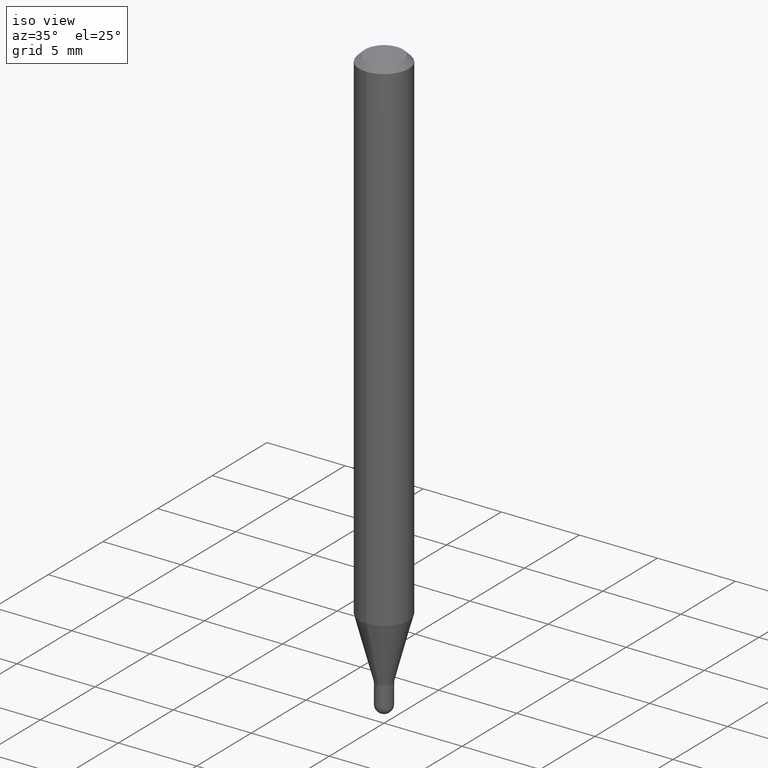
[diagram: clean part render]
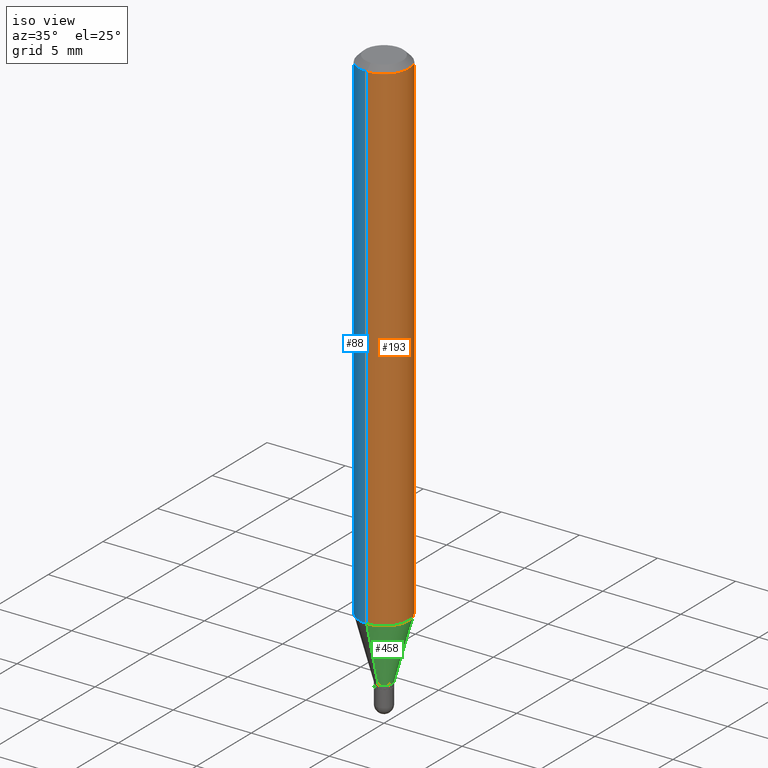
[diagram: same view with three faces highlighted in distinct colors, each labeled with its STEP entity id]
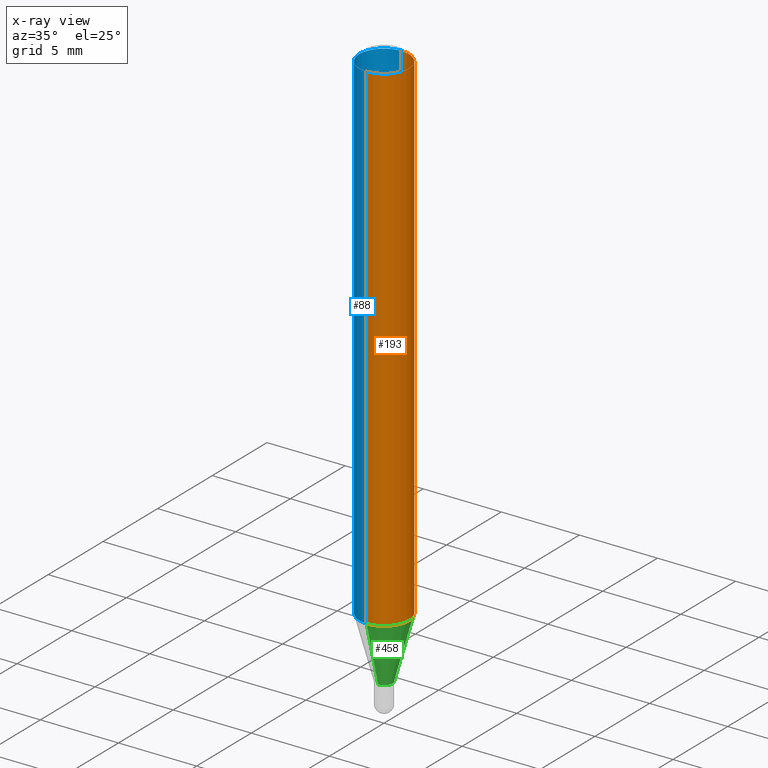
[diagram: x-ray of the same camera — body ghosted, the three highlighted faces saturated]
A machine part, iso view with three faces highlighted in distinct colors.
The next image is the same camera in x-ray (body ghosted, the three faces saturated) — at least one of them is partly hidden behind the body in this view.
Their STEP definitions:

[orange] entity #193 — the highlighted cylindrical surface (edge-blend (fillet) strip) has radius 1.5875 mm, axis along (-0, 0, 1).
#5 = AXIS2_PLACEMENT_3D ( 'NONE', #84, #413, #50 ) ;
#10 = DIRECTION ( 'NONE',  ( -2.445480848549432183E-29, 3.491464093492065747E-15, 1.000000000000000000 ) ) ;
#26 = ORIENTED_EDGE ( 'NONE', *, *, #492, .F. ) ;
#44 = CARTESIAN_POINT ( 'NONE',  ( 4.440892098500625669E-16, 0.06250000000000000000, -2.182165058432541092E-16 ) ) ;
#50 = DIRECTION ( 'NONE',  ( -6.982962677686265922E-15, -1.000000000000000000, 3.483106191921935554E-15 ) ) ;
#58 = VERTEX_POINT ( 'NONE', #123 ) ;
#66 = VERTEX_POINT ( 'NONE', #192 ) ;
#84 = CARTESIAN_POINT ( 'NONE',  ( 3.668221272824228849E-31, -5.237196140238213400E-17, -0.01500000000000032904 ) ) ;
#92 = CARTESIAN_POINT ( 'NONE',  ( 0.000000000000000000, 0.000000000000000000, 0.000000000000000000 ) ) ;
#108 = DIRECTION ( 'NONE',  ( -2.445480848549432183E-29, 3.491464093492066142E-15, 1.000000000000000000 ) ) ;
#114 = LINE ( 'NONE', #154, #281 ) ;
#123 = CARTESIAN_POINT ( 'NONE',  ( -4.364351673553605587E-16, -0.06250000000000445477, -1.272119891485891552 ) ) ;
#149 = AXIS2_PLACEMENT_3D ( 'NONE', #220, #375, #176 ) ;
#154 = CARTESIAN_POINT ( 'NONE',  ( -4.364351673553916201E-16, -0.06250000000000000000, 2.182165058432541092E-16 ) ) ;
#176 = DIRECTION ( 'NONE',  ( -6.982962677686265922E-15, -1.000000000000000000, 4.370956789862821150E-15 ) ) ;
#192 = CARTESIAN_POINT ( 'NONE',  ( 4.440892098500938748E-16, 0.06249999999999995143, -0.01500000000000054588 ) ) ;
#193 = ADVANCED_FACE ( 'NONE', ( #457 ), #213, .T. ) ;
#201 = ORIENTED_EDGE ( 'NONE', *, *, #416, .T. ) ;
#213 = CYLINDRICAL_SURFACE ( 'NONE', #323, 0.06250000000000000000 ) ;
#220 = CARTESIAN_POINT ( 'NONE',  ( 3.110944831687530350E-29, -4.441560923740014172E-15, -1.272119891485891774 ) ) ;
#223 = ORIENTED_EDGE ( 'NONE', *, *, #291, .T. ) ;
#237 = DIRECTION ( 'NONE',  ( -2.445480848549432183E-29, 3.491464093492066142E-15, 1.000000000000000000 ) ) ;
#281 = VECTOR ( 'NONE', #237, 39.37007874015748143 ) ;
#291 = EDGE_CURVE ( 'NONE', #384, #66, #362, .T. ) ;
#304 = ORIENTED_EDGE ( 'NONE', *, *, #383, .F. ) ;
#323 = AXIS2_PLACEMENT_3D ( 'NONE', #92, #10, #488 ) ;
#324 = CIRCLE ( 'NONE', #5, 0.06250000000000000000 ) ;
#336 = VERTEX_POINT ( 'NONE', #337 ) ;
#337 = CARTESIAN_POINT ( 'NONE',  ( -4.364351673553912750E-16, -0.06250000000000005551, -0.01500000000000011047 ) ) ;
#362 = LINE ( 'NONE', #44, #407 ) ;
#375 = DIRECTION ( 'NONE',  ( -2.445480848549432183E-29, 3.491464093492065747E-15, 1.000000000000000000 ) ) ;
#383 = EDGE_CURVE ( 'NONE', #336, #66, #324, .T. ) ;
#384 = VERTEX_POINT ( 'NONE', #417 ) ;
#407 = VECTOR ( 'NONE', #108, 39.37007874015748143 ) ;
#413 = DIRECTION ( 'NONE',  ( -2.445480848549432183E-29, 3.491464093492065747E-15, 1.000000000000000000 ) ) ;
#416 = EDGE_CURVE ( 'NONE', #58, #384, #470, .T. ) ;
#417 = CARTESIAN_POINT ( 'NONE',  ( 4.440892098500934804E-16, 0.06249999999999554523, -1.272119891485891996 ) ) ;
#457 = FACE_OUTER_BOUND ( 'NONE', #508, .T. ) ;
#470 = CIRCLE ( 'NONE', #149, 0.06250000000000000000 ) ;
#488 = DIRECTION ( 'NONE',  ( -6.982962677686265922E-15, -1.000000000000000000, 3.491464093492065747E-15 ) ) ;
#492 = EDGE_CURVE ( 'NONE', #58, #336, #114, .T. ) ;
#508 = EDGE_LOOP ( 'NONE', ( #201, #223, #304, #26 ) ) ;

[blue] entity #88 — the highlighted cylindrical surface (edge-blend (fillet) strip) has radius 1.5875 mm, axis along (-0, 0, 1).
#6 = ORIENTED_EDGE ( 'NONE', *, *, #453, .F. ) ;
#13 = AXIS2_PLACEMENT_3D ( 'NONE', #225, #165, #233 ) ;
#39 = DIRECTION ( 'NONE',  ( -6.982962677686265922E-15, -1.000000000000000000, 4.370956789862821150E-15 ) ) ;
#44 = CARTESIAN_POINT ( 'NONE',  ( 4.440892098500625669E-16, 0.06250000000000000000, -2.182165058432541092E-16 ) ) ;
#58 = VERTEX_POINT ( 'NONE', #123 ) ;
#60 = EDGE_CURVE ( 'NONE', #384, #58, #241, .T. ) ;
#66 = VERTEX_POINT ( 'NONE', #192 ) ;
#88 = ADVANCED_FACE ( 'NONE', ( #316 ), #122, .T. ) ;
#108 = DIRECTION ( 'NONE',  ( -2.445480848549432183E-29, 3.491464093492066142E-15, 1.000000000000000000 ) ) ;
#114 = LINE ( 'NONE', #154, #281 ) ;
#122 = CYLINDRICAL_SURFACE ( 'NONE', #13, 0.06250000000000000000 ) ;
#123 = CARTESIAN_POINT ( 'NONE',  ( -4.364351673553605587E-16, -0.06250000000000445477, -1.272119891485891552 ) ) ;
#138 = DIRECTION ( 'NONE',  ( -6.982962677686265922E-15, -1.000000000000000000, 3.483106191921935554E-15 ) ) ;
#140 = CARTESIAN_POINT ( 'NONE',  ( 3.668221272824228849E-31, -5.237196140238213400E-17, -0.01500000000000032904 ) ) ;
#146 = DIRECTION ( 'NONE',  ( -2.445480848549432183E-29, 3.491464093492065747E-15, 1.000000000000000000 ) ) ;
#148 = EDGE_LOOP ( 'NONE', ( #181, #510, #501, #6 ) ) ;
#153 = DIRECTION ( 'NONE',  ( -2.445480848549432183E-29, 3.491464093492065747E-15, 1.000000000000000000 ) ) ;
#154 = CARTESIAN_POINT ( 'NONE',  ( -4.364351673553916201E-16, -0.06250000000000000000, 2.182165058432541092E-16 ) ) ;
#165 = DIRECTION ( 'NONE',  ( -2.445480848549432183E-29, 3.491464093492065747E-15, 1.000000000000000000 ) ) ;
#181 = ORIENTED_EDGE ( 'NONE', *, *, #291, .F. ) ;
#192 = CARTESIAN_POINT ( 'NONE',  ( 4.440892098500938748E-16, 0.06249999999999995143, -0.01500000000000054588 ) ) ;
#225 = CARTESIAN_POINT ( 'NONE',  ( 0.000000000000000000, 0.000000000000000000, 0.000000000000000000 ) ) ;
#233 = DIRECTION ( 'NONE',  ( -6.982962677686265922E-15, -1.000000000000000000, 3.491464093492065747E-15 ) ) ;
#237 = DIRECTION ( 'NONE',  ( -2.445480848549432183E-29, 3.491464093492066142E-15, 1.000000000000000000 ) ) ;
#241 = CIRCLE ( 'NONE', #300, 0.06250000000000000000 ) ;
#257 = AXIS2_PLACEMENT_3D ( 'NONE', #140, #146, #138 ) ;
#281 = VECTOR ( 'NONE', #237, 39.37007874015748143 ) ;
#291 = EDGE_CURVE ( 'NONE', #384, #66, #362, .T. ) ;
#300 = AXIS2_PLACEMENT_3D ( 'NONE', #343, #153, #39 ) ;
#316 = FACE_OUTER_BOUND ( 'NONE', #148, .T. ) ;
#336 = VERTEX_POINT ( 'NONE', #337 ) ;
#337 = CARTESIAN_POINT ( 'NONE',  ( -4.364351673553912750E-16, -0.06250000000000005551, -0.01500000000000011047 ) ) ;
#343 = CARTESIAN_POINT ( 'NONE',  ( 3.110944831687530350E-29, -4.441560923740014172E-15, -1.272119891485891774 ) ) ;
#362 = LINE ( 'NONE', #44, #407 ) ;
#384 = VERTEX_POINT ( 'NONE', #417 ) ;
#407 = VECTOR ( 'NONE', #108, 39.37007874015748143 ) ;
#417 = CARTESIAN_POINT ( 'NONE',  ( 4.440892098500934804E-16, 0.06249999999999554523, -1.272119891485891996 ) ) ;
#429 = CIRCLE ( 'NONE', #257, 0.06250000000000000000 ) ;
#453 = EDGE_CURVE ( 'NONE', #66, #336, #429, .T. ) ;
#492 = EDGE_CURVE ( 'NONE', #58, #336, #114, .T. ) ;
#501 = ORIENTED_EDGE ( 'NONE', *, *, #492, .T. ) ;
#510 = ORIENTED_EDGE ( 'NONE', *, *, #60, .T. ) ;

[green] entity #458 — the highlighted conical surface has half-angle 15 deg.
#3 = CARTESIAN_POINT ( 'NONE',  ( -1.466422162313761505E-16, -0.02100000000000490363, -1.427000000000000046 ) ) ;
#12 = CIRCLE ( 'NONE', #217, 0.02099999999999992151 ) ;
#22 = DIRECTION ( 'NONE',  ( 1.839019923739598738E-15, 0.2588190451025247363, 0.9659258262890673130 ) ) ;
#24 = EDGE_CURVE ( 'NONE', #399, #58, #43, .T. ) ;
#43 = LINE ( 'NONE', #3, #462 ) ;
#58 = VERTEX_POINT ( 'NONE', #123 ) ;
#74 = ORIENTED_EDGE ( 'NONE', *, *, #408, .T. ) ;
#80 = DIRECTION ( 'NONE',  ( -1.807323732225328562E-15, -0.2588190451025179639, 0.9659258262890690894 ) ) ;
#87 = DIRECTION ( 'NONE',  ( -6.982962677686266711E-15, -1.000000000000000000, 0.000000000000000000 ) ) ;
#123 = CARTESIAN_POINT ( 'NONE',  ( -4.364351673553605587E-16, -0.06250000000000445477, -1.272119891485891552 ) ) ;
#149 = AXIS2_PLACEMENT_3D ( 'NONE', #220, #375, #176 ) ;
#176 = DIRECTION ( 'NONE',  ( -6.982962677686265922E-15, -1.000000000000000000, 4.370956789862821150E-15 ) ) ;
#180 = LINE ( 'NONE', #330, #301 ) ;
#217 = AXIS2_PLACEMENT_3D ( 'NONE', #369, #410, #87 ) ;
#220 = CARTESIAN_POINT ( 'NONE',  ( 3.110944831687530350E-29, -4.441560923740014172E-15, -1.272119891485891774 ) ) ;
#239 = DIRECTION ( 'NONE',  ( -6.982962677686266711E-15, -1.000000000000000000, 0.000000000000000000 ) ) ;
#252 = VERTEX_POINT ( 'NONE', #400 ) ;
#260 = ORIENTED_EDGE ( 'NONE', *, *, #450, .T. ) ;
#269 = CONICAL_SURFACE ( 'NONE', #456, 0.02099999999999992151, 0.2617993877991500740 ) ;
#290 = FACE_OUTER_BOUND ( 'NONE', #420, .T. ) ;
#293 = CARTESIAN_POINT ( 'NONE',  ( 3.489701170880039634E-29, -4.982319261413178250E-15, -1.427000000000000046 ) ) ;
#301 = VECTOR ( 'NONE', #22, 39.37007874015748854 ) ;
#330 = CARTESIAN_POINT ( 'NONE',  ( 1.492139745096553638E-16, 0.02099999999999493938, -1.427000000000000046 ) ) ;
#350 = ORIENTED_EDGE ( 'NONE', *, *, #416, .F. ) ;
#369 = CARTESIAN_POINT ( 'NONE',  ( 3.489701170880039634E-29, -4.982319261413178250E-15, -1.427000000000000046 ) ) ;
#372 = ORIENTED_EDGE ( 'NONE', *, *, #24, .F. ) ;
#375 = DIRECTION ( 'NONE',  ( -2.445480848549432183E-29, 3.491464093492065747E-15, 1.000000000000000000 ) ) ;
#384 = VERTEX_POINT ( 'NONE', #417 ) ;
#399 = VERTEX_POINT ( 'NONE', #486 ) ;
#400 = CARTESIAN_POINT ( 'NONE',  ( 2.966515921798746316E-16, 0.02099999999999493938, -1.427000000000000046 ) ) ;
#408 = EDGE_CURVE ( 'NONE', #399, #252, #12, .T. ) ;
#410 = DIRECTION ( 'NONE',  ( -2.445480848549432183E-29, 3.491464093492065747E-15, 1.000000000000000000 ) ) ;
#416 = EDGE_CURVE ( 'NONE', #58, #384, #470, .T. ) ;
#417 = CARTESIAN_POINT ( 'NONE',  ( 4.440892098500934804E-16, 0.06249999999999554523, -1.272119891485891996 ) ) ;
#420 = EDGE_LOOP ( 'NONE', ( #74, #260, #350, #372 ) ) ;
#450 = EDGE_CURVE ( 'NONE', #252, #384, #180, .T. ) ;
#456 = AXIS2_PLACEMENT_3D ( 'NONE', #293, #466, #239 ) ;
#458 = ADVANCED_FACE ( 'NONE', ( #290 ), #269, .T. ) ;
#462 = VECTOR ( 'NONE', #80, 39.37007874015748854 ) ;
#466 = DIRECTION ( 'NONE',  ( -2.445480848549432183E-29, 3.491464093492065747E-15, 1.000000000000000000 ) ) ;
#470 = CIRCLE ( 'NONE', #149, 0.06250000000000000000 ) ;
#486 = CARTESIAN_POINT ( 'NONE',  ( -1.466422162313761505E-16, -0.02100000000000490363, -1.427000000000000046 ) ) ;